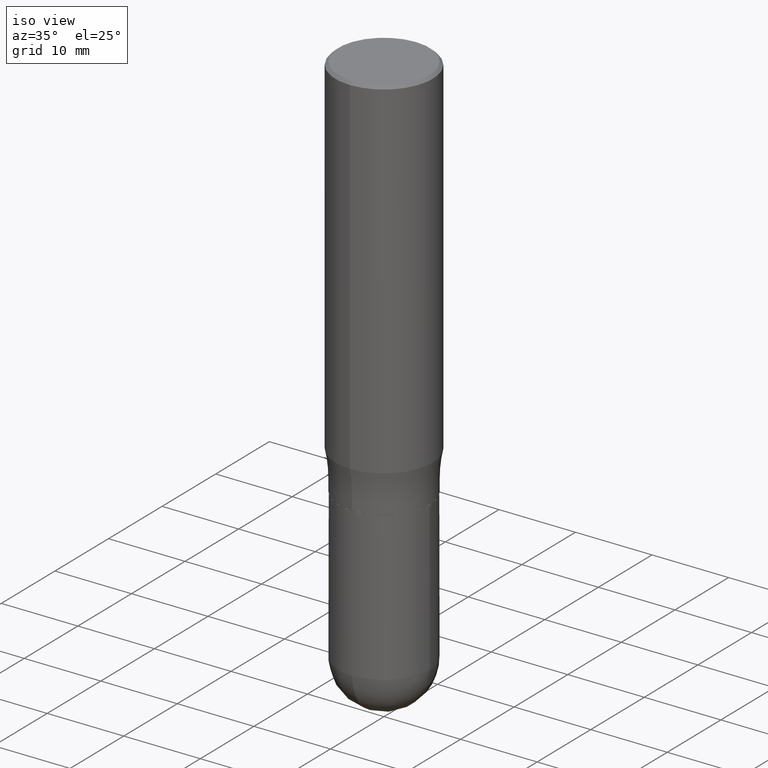
[diagram: clean part render]
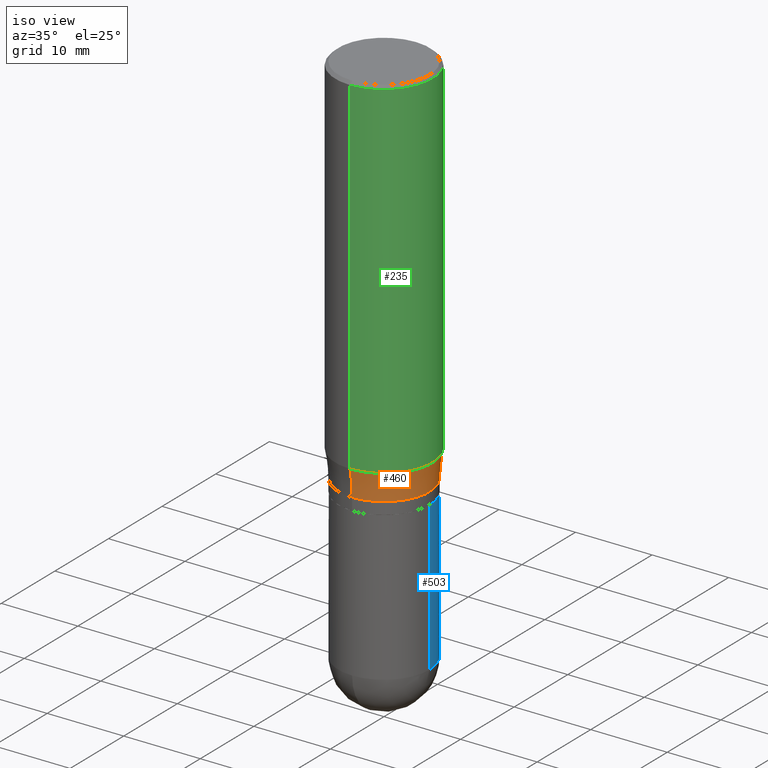
[diagram: same view with three faces highlighted in distinct colors, each labeled with its STEP entity id]
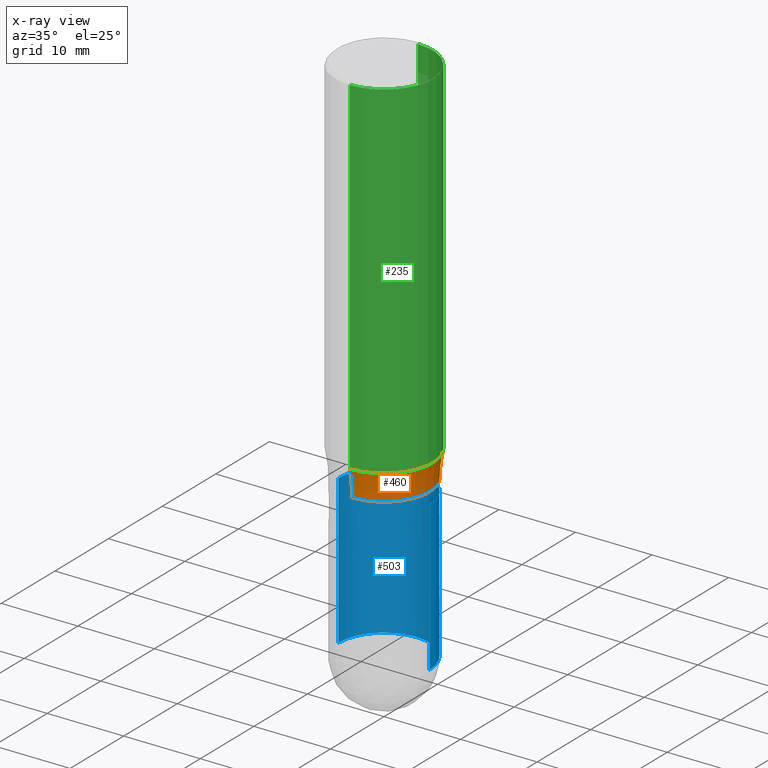
[diagram: x-ray of the same camera — body ghosted, the three highlighted faces saturated]
A machine part, iso view with three faces highlighted in distinct colors.
The next image is the same camera in x-ray (body ghosted, the three faces saturated) — at least one of them is partly hidden behind the body in this view.
Their STEP definitions:

[orange] entity #460 — the highlighted toroidal blend (fillet) surface has major radius 21.8288 mm and minor (blend) radius 15.875 mm.
#3 = CIRCLE ( 'NONE', #300, 0.6250000000000001110 ) ;
#10 = DIRECTION ( 'NONE',  ( 1.000000000000000000, -7.105427357601001070E-15, 4.926327769175085437E-29 ) ) ;
#23 = CARTESIAN_POINT ( 'NONE',  ( 1.776356839400294641E-15, 0.2499999999999936717, -1.799231703909000002 ) ) ;
#28 = CIRCLE ( 'NONE', #130, 0.6250000000000001110 ) ;
#30 = EDGE_CURVE ( 'NONE', #247, #322, #3, .T. ) ;
#37 = ORIENTED_EDGE ( 'NONE', *, *, #376, .F. ) ;
#65 = VERTEX_POINT ( 'NONE', #365 ) ;
#70 = CARTESIAN_POINT ( 'NONE',  ( 4.737963682912671420E-29, -6.768431076287002133E-15, -1.938000000000000167 ) ) ;
#71 = CARTESIAN_POINT ( 'NONE',  ( -1.636806451649615157E-15, -0.2344000000000069917, -1.937999999999999279 ) ) ;
#95 = CIRCLE ( 'NONE', #331, 0.2500000000000000000 ) ;
#98 = EDGE_CURVE ( 'NONE', #65, #249, #28, .T. ) ;
#102 = AXIS2_PLACEMENT_3D ( 'NONE', #487, #452, #147 ) ;
#113 = DIRECTION ( 'NONE',  ( -2.444769702225320447E-29, 3.492482495504128512E-15, 1.000000000000000000 ) ) ;
#129 = EDGE_LOOP ( 'NONE', ( #405, #37, #136, #477 ) ) ;
#130 = AXIS2_PLACEMENT_3D ( 'NONE', #214, #370, #330 ) ;
#132 = TOROIDAL_SURFACE ( 'NONE', #102, 0.8594000000000002748, 0.6250000000000000000 ) ;
#136 = ORIENTED_EDGE ( 'NONE', *, *, #98, .T. ) ;
#147 = DIRECTION ( 'NONE',  ( -6.982962677686265922E-15, -1.000000000000000000, 3.492482495504128512E-15 ) ) ;
#160 = CARTESIAN_POINT ( 'NONE',  ( 1.720934506011009380E-15, 0.2343999999999935024, -1.938000000000001055 ) ) ;
#194 = EDGE_CURVE ( 'NONE', #249, #322, #226, .T. ) ;
#202 = DIRECTION ( 'NONE',  ( -6.982962677686265922E-15, -1.000000000000000000, 3.278217592397115862E-15 ) ) ;
#208 = CARTESIAN_POINT ( 'NONE',  ( 6.106404271122349493E-15, 0.8593999999999933914, -1.938000000000003276 ) ) ;
#214 = CARTESIAN_POINT ( 'NONE',  ( -6.001158125203531062E-15, -0.8594000000000070472, -1.937999999999997280 ) ) ;
#226 = CIRCLE ( 'NONE', #468, 0.2344000000000002470 ) ;
#247 = VERTEX_POINT ( 'NONE', #23 ) ;
#249 = VERTEX_POINT ( 'NONE', #71 ) ;
#283 = CARTESIAN_POINT ( 'NONE',  ( 4.398707156999959625E-29, -6.283785231258246916E-15, -1.799231703908999114 ) ) ;
#300 = AXIS2_PLACEMENT_3D ( 'NONE', #208, #10, #368 ) ;
#318 = DIRECTION ( 'NONE',  ( -2.444769702225320447E-29, 3.492482495504128512E-15, 1.000000000000000000 ) ) ;
#322 = VERTEX_POINT ( 'NONE', #160 ) ;
#330 = DIRECTION ( 'NONE',  ( -6.982962677686264344E-15, -1.000000000000000000, 0.000000000000000000 ) ) ;
#331 = AXIS2_PLACEMENT_3D ( 'NONE', #283, #318, #202 ) ;
#332 = FACE_OUTER_BOUND ( 'NONE', #129, .T. ) ;
#365 = CARTESIAN_POINT ( 'NONE',  ( -1.745740669421522107E-15, -0.2500000000000062728, -1.799231703908998448 ) ) ;
#368 = DIRECTION ( 'NONE',  ( 7.105427357600999492E-15, 1.000000000000000000, 0.000000000000000000 ) ) ;
#370 = DIRECTION ( 'NONE',  ( -1.000000000000000000, 6.982962677686265922E-15, -4.883557194083112340E-29 ) ) ;
#376 = EDGE_CURVE ( 'NONE', #65, #247, #95, .T. ) ;
#405 = ORIENTED_EDGE ( 'NONE', *, *, #30, .F. ) ;
#452 = DIRECTION ( 'NONE',  ( -2.444769702225320447E-29, 3.492482495504128512E-15, 1.000000000000000000 ) ) ;
#460 = ADVANCED_FACE ( 'NONE', ( #332 ), #132, .F. ) ;
#462 = DIRECTION ( 'NONE',  ( -6.982962677686265133E-15, -1.000000000000000000, 3.496392483358695161E-15 ) ) ;
#468 = AXIS2_PLACEMENT_3D ( 'NONE', #70, #113, #462 ) ;
#477 = ORIENTED_EDGE ( 'NONE', *, *, #194, .T. ) ;
#487 = CARTESIAN_POINT ( 'NONE',  ( 4.739318546386795518E-29, -6.766490834678016834E-15, -1.938000000000000167 ) ) ;

[blue] entity #503 — the highlighted cylindrical surface (partial cylindrical patch) has radius 5.9538 mm, axis along (-0, 0, 1).
#19 = VERTEX_POINT ( 'NONE', #179 ) ;
#27 = DIRECTION ( 'NONE',  ( 1.000000000000000000, -6.982962677686269077E-15, 0.000000000000000000 ) ) ;
#40 = CARTESIAN_POINT ( 'NONE',  ( 6.763188530385614545E-29, -9.656040790704603926E-15, -2.765600000000000058 ) ) ;
#44 = DIRECTION ( 'NONE',  ( -2.445468806185136877E-29, 3.491481338843145188E-15, 1.000000000000000000 ) ) ;
#49 = CARTESIAN_POINT ( 'NONE',  ( 0.000000000000000000, 0.000000000000000000, 0.000000000000000000 ) ) ;
#60 = VERTEX_POINT ( 'NONE', #438 ) ;
#90 = CIRCLE ( 'NONE', #186, 0.2344000000000000250 ) ;
#93 = FACE_OUTER_BOUND ( 'NONE', #313, .T. ) ;
#119 = VERTEX_POINT ( 'NONE', #142 ) ;
#134 = ORIENTED_EDGE ( 'NONE', *, *, #466, .F. ) ;
#142 = CARTESIAN_POINT ( 'NONE',  ( -0.2344000000000000250, -6.653989561573774307E-15, -2.765600000000000058 ) ) ;
#144 = EDGE_CURVE ( 'NONE', #60, #119, #90, .T. ) ;
#172 = AXIS2_PLACEMENT_3D ( 'NONE', #289, #220, #297 ) ;
#175 = ORIENTED_EDGE ( 'NONE', *, *, #144, .T. ) ;
#179 = CARTESIAN_POINT ( 'NONE',  ( 0.2344000000000000250, -9.956308185845112006E-15, -2.765600000000000058 ) ) ;
#184 = AXIS2_PLACEMENT_3D ( 'NONE', #40, #392, #394 ) ;
#186 = AXIS2_PLACEMENT_3D ( 'NONE', #413, #296, #27 ) ;
#199 = VECTOR ( 'NONE', #44, 39.37007874015748143 ) ;
#213 = DIRECTION ( 'NONE',  ( -2.445468806185136597E-29, 3.491481338843145583E-15, 1.000000000000000000 ) ) ;
#220 = DIRECTION ( 'NONE',  ( -2.445468806185136597E-29, 3.491481338843145583E-15, 1.000000000000000000 ) ) ;
#246 = LINE ( 'NONE', #471, #199 ) ;
#289 = CARTESIAN_POINT ( 'NONE',  ( 4.890937612370273754E-29, -6.982962677686291954E-15, -2.000000000000000444 ) ) ;
#292 = CARTESIAN_POINT ( 'NONE',  ( -0.2344000000000000250, 1.665512172621675013E-15, -1.152998385155750104E-29 ) ) ;
#296 = DIRECTION ( 'NONE',  ( -2.445468806185136597E-29, 3.491481338843145583E-15, 1.000000000000000000 ) ) ;
#297 = DIRECTION ( 'NONE',  ( 1.000000000000000000, -6.982962677686269077E-15, 0.000000000000000000 ) ) ;
#299 = LINE ( 'NONE', #292, #306 ) ;
#302 = ORIENTED_EDGE ( 'NONE', *, *, #488, .T. ) ;
#306 = VECTOR ( 'NONE', #450, 39.37007874015748143 ) ;
#313 = EDGE_LOOP ( 'NONE', ( #175, #302, #134, #502, #470 ) ) ;
#317 = CIRCLE ( 'NONE', #184, 0.2344000000000000250 ) ;
#349 = VERTEX_POINT ( 'NONE', #469 ) ;
#352 = VERTEX_POINT ( 'NONE', #430 ) ;
#362 = EDGE_CURVE ( 'NONE', #19, #60, #317, .T. ) ;
#371 = EDGE_CURVE ( 'NONE', #19, #349, #246, .T. ) ;
#392 = DIRECTION ( 'NONE',  ( -2.445468806185136597E-29, 3.491481338843145583E-15, 1.000000000000000000 ) ) ;
#394 = DIRECTION ( 'NONE',  ( 1.000000000000000000, -6.982962677686269077E-15, 0.000000000000000000 ) ) ;
#408 = CYLINDRICAL_SURFACE ( 'NONE', #428, 0.2344000000000000250 ) ;
#412 = DIRECTION ( 'NONE',  ( 1.000000000000000000, -6.982962677686266711E-15, 4.876176775795936353E-29 ) ) ;
#413 = CARTESIAN_POINT ( 'NONE',  ( 6.763188530385614545E-29, -9.656040790704603926E-15, -2.765600000000000058 ) ) ;
#428 = AXIS2_PLACEMENT_3D ( 'NONE', #49, #213, #412 ) ;
#430 = CARTESIAN_POINT ( 'NONE',  ( -0.2344000000000000250, -6.653989561573772729E-15, -2.000000000000000444 ) ) ;
#438 = CARTESIAN_POINT ( 'NONE',  ( 1.636806451649728555E-15, 0.2343999999999903938, -2.765600000000000502 ) ) ;
#450 = DIRECTION ( 'NONE',  ( -2.445468806185136877E-29, 3.491481338843145188E-15, 1.000000000000000000 ) ) ;
#466 = EDGE_CURVE ( 'NONE', #349, #352, #478, .T. ) ;
#469 = CARTESIAN_POINT ( 'NONE',  ( 0.2344000000000000250, -8.619769129335953654E-15, -2.000000000000000444 ) ) ;
#470 = ORIENTED_EDGE ( 'NONE', *, *, #362, .T. ) ;
#471 = CARTESIAN_POINT ( 'NONE',  ( 0.2344000000000000250, -1.636806451649661108E-15, 1.142975836246567575E-29 ) ) ;
#478 = CIRCLE ( 'NONE', #172, 0.2344000000000000250 ) ;
#488 = EDGE_CURVE ( 'NONE', #119, #352, #299, .T. ) ;
#502 = ORIENTED_EDGE ( 'NONE', *, *, #371, .F. ) ;
#503 = ADVANCED_FACE ( 'NONE', ( #93 ), #408, .T. ) ;

[green] entity #235 — the highlighted cylindrical surface (partial cylindrical patch) has radius 6.35 mm, axis along (-0, 0, 1).
#23 = CARTESIAN_POINT ( 'NONE',  ( 1.776356839400294641E-15, 0.2499999999999936717, -1.799231703909000002 ) ) ;
#65 = VERTEX_POINT ( 'NONE', #365 ) ;
#85 = ORIENTED_EDGE ( 'NONE', *, *, #376, .T. ) ;
#89 = CIRCLE ( 'NONE', #266, 0.2500000000000000000 ) ;
#95 = CIRCLE ( 'NONE', #331, 0.2500000000000000000 ) ;
#96 = CARTESIAN_POINT ( 'NONE',  ( 3.667154553337987905E-31, -5.238723743256204132E-17, -0.01500000000000003067 ) ) ;
#105 = CARTESIAN_POINT ( 'NONE',  ( -1.715124499442882299E-15, -0.2500000000000000555, -0.01499999999999915637 ) ) ;
#114 = EDGE_CURVE ( 'NONE', #238, #355, #89, .T. ) ;
#115 = CARTESIAN_POINT ( 'NONE',  ( 0.000000000000000000, 0.000000000000000000, 0.000000000000000000 ) ) ;
#122 = AXIS2_PLACEMENT_3D ( 'NONE', #115, #379, #345 ) ;
#159 = EDGE_LOOP ( 'NONE', ( #85, #326, #262, #203 ) ) ;
#185 = CYLINDRICAL_SURFACE ( 'NONE', #122, 0.2500000000000000000 ) ;
#202 = DIRECTION ( 'NONE',  ( -6.982962677686265922E-15, -1.000000000000000000, 3.278217592397115862E-15 ) ) ;
#203 = ORIENTED_EDGE ( 'NONE', *, *, #496, .F. ) ;
#235 = ADVANCED_FACE ( 'NONE', ( #382 ), #185, .T. ) ;
#237 = LINE ( 'NONE', #431, #399 ) ;
#238 = VERTEX_POINT ( 'NONE', #105 ) ;
#239 = DIRECTION ( 'NONE',  ( -2.444769702225320447E-29, 3.492482495504128512E-15, 1.000000000000000000 ) ) ;
#247 = VERTEX_POINT ( 'NONE', #23 ) ;
#254 = LINE ( 'NONE', #439, #500 ) ;
#258 = DIRECTION ( 'NONE',  ( -6.982962677686265922E-15, -1.000000000000000000, 3.491643216902136408E-15 ) ) ;
#262 = ORIENTED_EDGE ( 'NONE', *, *, #114, .F. ) ;
#266 = AXIS2_PLACEMENT_3D ( 'NONE', #96, #448, #258 ) ;
#283 = CARTESIAN_POINT ( 'NONE',  ( 4.398707156999959625E-29, -6.283785231258246916E-15, -1.799231703908999114 ) ) ;
#318 = DIRECTION ( 'NONE',  ( -2.444769702225320447E-29, 3.492482495504128512E-15, 1.000000000000000000 ) ) ;
#326 = ORIENTED_EDGE ( 'NONE', *, *, #336, .T. ) ;
#331 = AXIS2_PLACEMENT_3D ( 'NONE', #283, #318, #202 ) ;
#336 = EDGE_CURVE ( 'NONE', #247, #355, #237, .T. ) ;
#345 = DIRECTION ( 'NONE',  ( -6.982962677686265922E-15, -1.000000000000000000, 3.492482495504128512E-15 ) ) ;
#355 = VERTEX_POINT ( 'NONE', #433 ) ;
#365 = CARTESIAN_POINT ( 'NONE',  ( -1.745740669421522107E-15, -0.2500000000000062728, -1.799231703908998448 ) ) ;
#376 = EDGE_CURVE ( 'NONE', #65, #247, #95, .T. ) ;
#379 = DIRECTION ( 'NONE',  ( -2.444769702225320447E-29, 3.492482495504128512E-15, 1.000000000000000000 ) ) ;
#382 = FACE_OUTER_BOUND ( 'NONE', #159, .T. ) ;
#399 = VECTOR ( 'NONE', #239, 39.37007874015748143 ) ;
#431 = CARTESIAN_POINT ( 'NONE',  ( 1.776356839400250267E-15, 0.2500000000000000000, -8.731206238760321279E-16 ) ) ;
#433 = CARTESIAN_POINT ( 'NONE',  ( 1.745740669421566875E-15, 0.2499999999999999167, -0.01500000000000090324 ) ) ;
#439 = CARTESIAN_POINT ( 'NONE',  ( -1.745740669421566480E-15, -0.2500000000000000000, 8.731206238760321279E-16 ) ) ;
#443 = DIRECTION ( 'NONE',  ( -2.444769702225320447E-29, 3.492482495504128512E-15, 1.000000000000000000 ) ) ;
#448 = DIRECTION ( 'NONE',  ( -2.444769702225320447E-29, 3.492482495504128512E-15, 1.000000000000000000 ) ) ;
#496 = EDGE_CURVE ( 'NONE', #65, #238, #254, .T. ) ;
#500 = VECTOR ( 'NONE', #443, 39.37007874015748143 ) ;